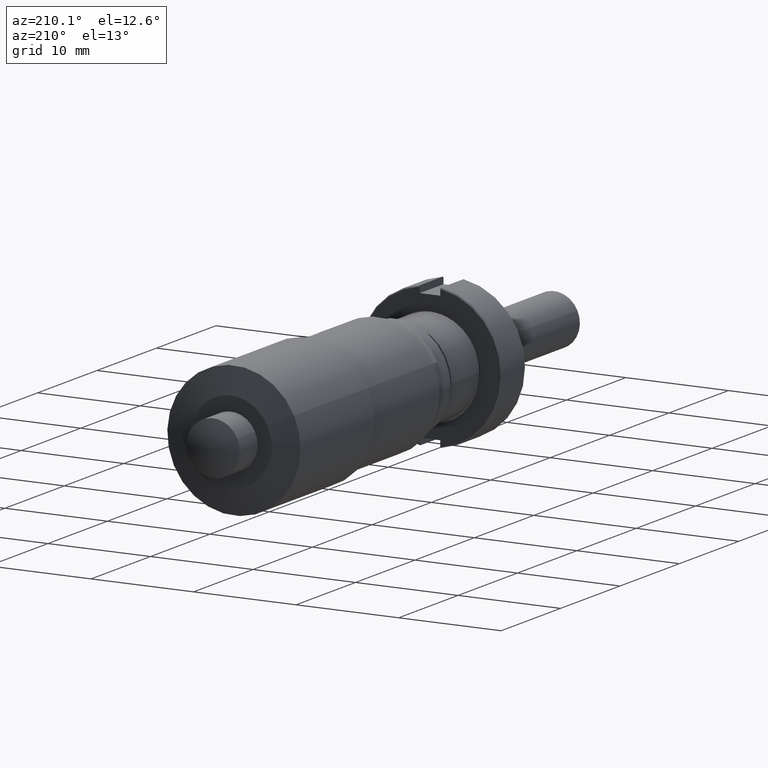
[diagram: clean part render]
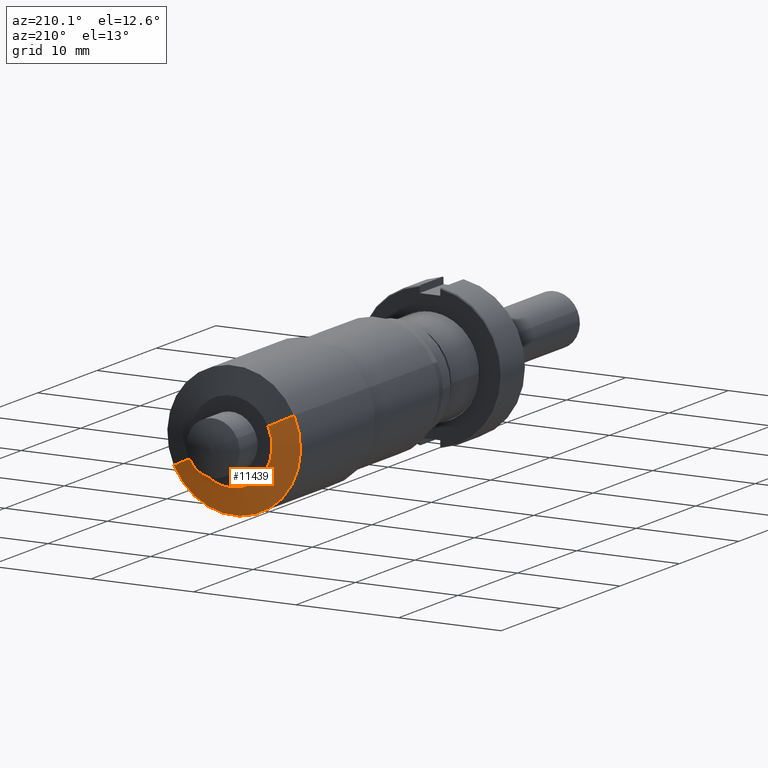
[diagram: same view with one face highlighted and labeled with its STEP entity id]
A machine part, auxiliary view. The second image highlights one B-rep face of the part: STEP entity #11439.
In plain terms, the highlighted conical surface has half-angle 78.69 deg.
Its self-contained STEP definition (entity closure, byte-faithful):
#450 = ORIENTED_EDGE ( 'NONE', *, *, #10434, .F. ) ;
#643 = EDGE_CURVE ( 'NONE', #4029, #7541, #4478, .T. ) ;
#849 = CARTESIAN_POINT ( 'NONE',  ( 15.18499167076406300, 38.53603129132215300, 20.33287438078602000 ) ) ;
#1322 = EDGE_CURVE ( 'NONE', #3806, #4029, #7960, .T. ) ;
#1608 = CARTESIAN_POINT ( 'NONE',  ( 22.40054605735436500, 38.53603129132215300, 16.87805529809043000 ) ) ;
#1914 = CARTESIAN_POINT ( 'NONE',  ( 18.79276886405921600, 38.53603129132215300, 18.60546483943822700 ) ) ;
#1932 = DIRECTION ( 'NONE',  ( -0.8844291494859116700, -0.1961161351381840400, 0.4234661038124401500 ) ) ;
#2451 = LINE ( 'NONE', #849, #7775 ) ;
#2843 = ORIENTED_EDGE ( 'NONE', *, *, #1322, .T. ) ;
#2864 = DIRECTION ( 'NONE',  ( 0.8844291494859117800, -0.1961161351381839100, -0.4234661038124401000 ) ) ;
#3108 = DIRECTION ( 'NONE',  ( -0.9019442983237868600, 0.0000000000000000000, 0.4318523853369479700 ) ) ;
#3183 = AXIS2_PLACEMENT_3D ( 'NONE', #1914, #5060, #9407 ) ;
#3459 = ORIENTED_EDGE ( 'NONE', *, *, #643, .T. ) ;
#3730 = CONICAL_SURFACE ( 'NONE', #3183, 4.000000000000003600, 1.373400766945015700 ) ;
#3806 = VERTEX_POINT ( 'NONE', #1608 ) ;
#3981 = CARTESIAN_POINT ( 'NONE',  ( 18.79276886405921600, 38.03603129132215300, 18.60546483943822700 ) ) ;
#4029 = VERTEX_POINT ( 'NONE', #12371 ) ;
#4478 = CIRCLE ( 'NONE', #11031, 6.500000000000007100 ) ;
#4659 = ORIENTED_EDGE ( 'NONE', *, *, #7745, .F. ) ;
#4723 = CARTESIAN_POINT ( 'NONE',  ( 12.93013092495458900, 38.03603129132215300, 21.41250534412839500 ) ) ;
#5029 = CIRCLE ( 'NONE', #9007, 4.000000000000005300 ) ;
#5060 = DIRECTION ( 'NONE',  ( 1.101876641632675700E-016, -1.000000000000000000, 2.975472225002335400E-018 ) ) ;
#5080 = CARTESIAN_POINT ( 'NONE',  ( 18.79276886405921600, 38.53603129132215300, 18.60546483943822700 ) ) ;
#6013 = DIRECTION ( 'NONE',  ( -1.101876641632675700E-016, 1.000000000000000000, -2.975472225002335400E-018 ) ) ;
#6055 = CARTESIAN_POINT ( 'NONE',  ( 22.40054605735436500, 38.53603129132215300, 16.87805529809043000 ) ) ;
#6142 = DIRECTION ( 'NONE',  ( -0.9019442983237867500, 0.0000000000000000000, 0.4318523853369483600 ) ) ;
#7541 = VERTEX_POINT ( 'NONE', #4723 ) ;
#7745 = EDGE_CURVE ( 'NONE', #12754, #7541, #2451, .T. ) ;
#7775 = VECTOR ( 'NONE', #1932, 1000.000000000000100 ) ;
#7950 = EDGE_LOOP ( 'NONE', ( #4659, #450, #2843, #3459 ) ) ;
#7960 = LINE ( 'NONE', #6055, #10876 ) ;
#9007 = AXIS2_PLACEMENT_3D ( 'NONE', #5080, #12620, #6142 ) ;
#9407 = DIRECTION ( 'NONE',  ( 0.9019442983237867500, 0.0000000000000000000, -0.4318523853369485300 ) ) ;
#10434 = EDGE_CURVE ( 'NONE', #3806, #12754, #5029, .T. ) ;
#10876 = VECTOR ( 'NONE', #2864, 1000.000000000000000 ) ;
#11031 = AXIS2_PLACEMENT_3D ( 'NONE', #3981, #6013, #3108 ) ;
#11439 = ADVANCED_FACE ( 'NONE', ( #13318 ), #3730, .T. ) ;
#12371 = CARTESIAN_POINT ( 'NONE',  ( 24.65540680316383200, 38.03603129132215300, 15.79842433474806100 ) ) ;
#12620 = DIRECTION ( 'NONE',  ( -1.101876641632675700E-016, 1.000000000000000000, -2.975472225002335400E-018 ) ) ;
#12754 = VERTEX_POINT ( 'NONE', #13041 ) ;
#13041 = CARTESIAN_POINT ( 'NONE',  ( 15.18499167076406100, 38.53603129132215300, 20.33287438078602000 ) ) ;
#13318 = FACE_OUTER_BOUND ( 'NONE', #7950, .T. ) ;